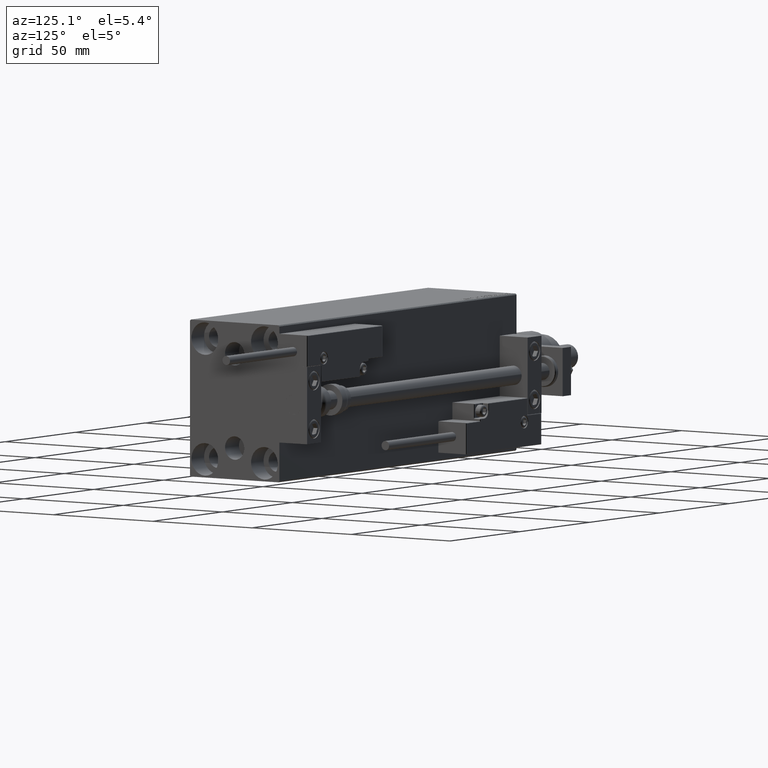
[diagram: clean part render]
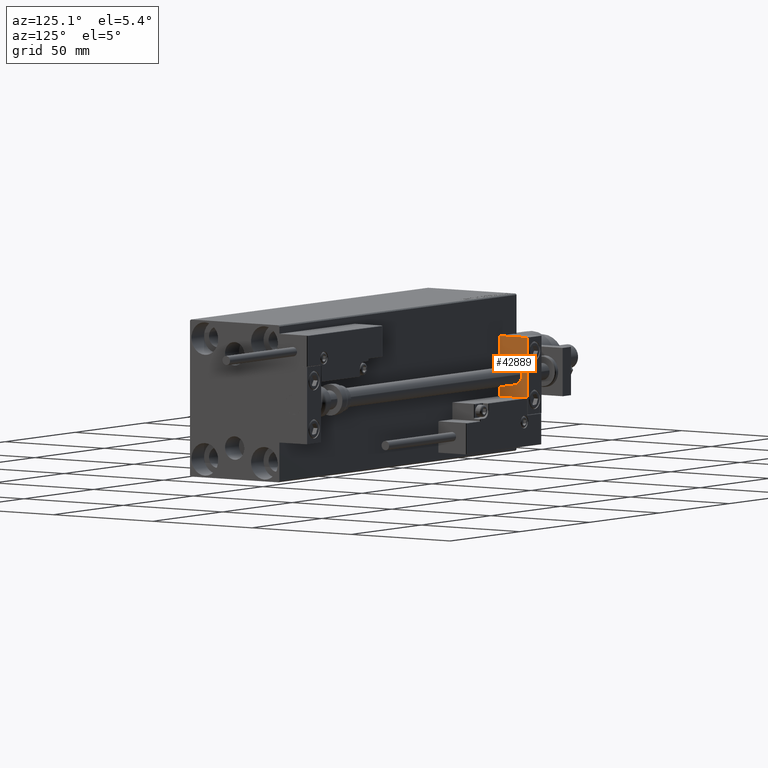
[diagram: same view with one face highlighted and labeled with its STEP entity id]
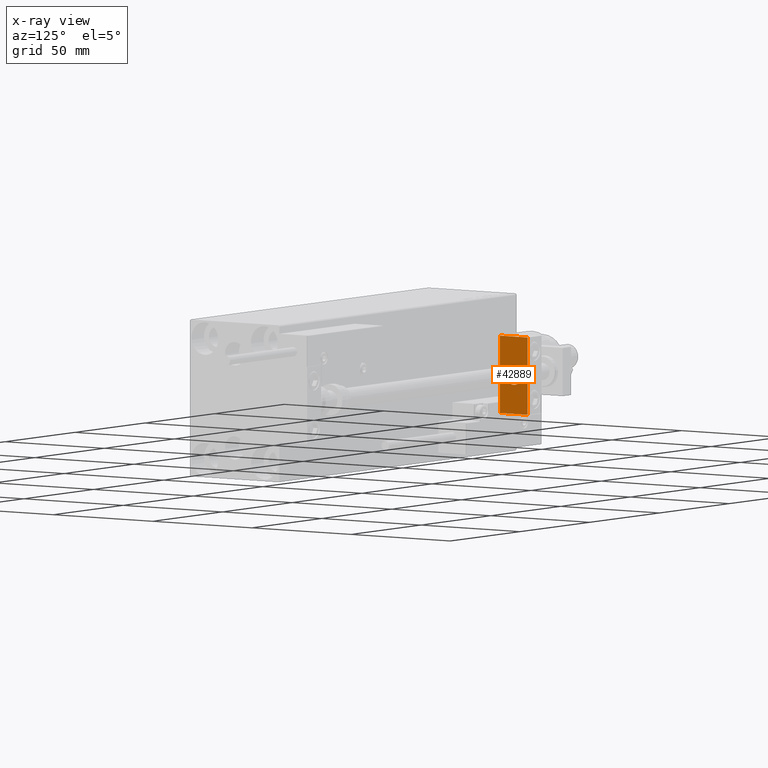
[diagram: x-ray of the same camera — body ghosted, the highlighted face saturated]
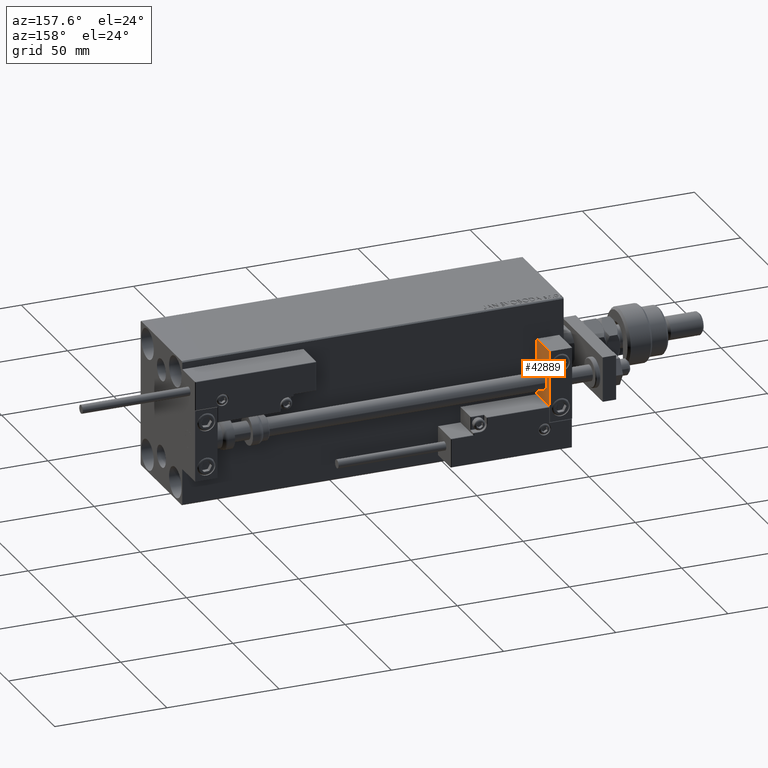
[diagram: same view with one face highlighted and labeled with its STEP entity id]
A machine part, auxiliary view. The second image highlights one B-rep face of the part: STEP entity #42889.
The next image is the same camera in x-ray: the body ghosted, the highlighted face saturated — about 0% of this face is hidden behind the body in this view.
A second angle (auxiliary view) of the same face is appended — the face is thin or edge-on in the first view.
In plain terms, the highlighted planar face has unit normal (1, 0, -0).
Its self-contained STEP definition (entity closure, byte-faithful):
#1687 = CARTESIAN_POINT ( 'NONE',  ( 0.000000000000000000, 0.000000000000000000, 4.000000000000000000 ) ) ;
#2921 = AXIS2_PLACEMENT_3D ( 'NONE', #19077, #26605, #14787 ) ;
#3023 = DIRECTION ( 'NONE',  ( -1.000000000000000000, -0.000000000000000000, -0.000000000000000000 ) ) ;
#3966 = EDGE_CURVE ( 'NONE', #49281, #51286, #26171, .T. ) ;
#4592 = VECTOR ( 'NONE', #13004, 1000.000000000000000 ) ;
#4768 = DIRECTION ( 'NONE',  ( -0.000000000000000000, 0.000000000000000000, 1.000000000000000000 ) ) ;
#5052 = VECTOR ( 'NONE', #26118, 1000.000000000000000 ) ;
#8233 = VERTEX_POINT ( 'NONE', #19262 ) ;
#9116 = EDGE_CURVE ( 'NONE', #42623, #46491, #33810, .T. ) ;
#11848 = EDGE_LOOP ( 'NONE', ( #45638, #43002, #26961, #44014 ) ) ;
#11877 = DIRECTION ( 'NONE',  ( 0.000000000000000000, 0.000000000000000000, 1.000000000000000000 ) ) ;
#12566 = PLANE ( 'NONE',  #52464 ) ;
#13004 = DIRECTION ( 'NONE',  ( 0.000000000000000000, 0.000000000000000000, -1.000000000000000000 ) ) ;
#14787 = DIRECTION ( 'NONE',  ( 0.000000000000000000, 0.000000000000000000, 1.000000000000000000 ) ) ;
#16134 = VECTOR ( 'NONE', #20956, 1000.000000000000000 ) ;
#16297 = EDGE_CURVE ( 'NONE', #42621, #42623, #30558, .T. ) ;
#17477 = CIRCLE ( 'NONE', #2921, 4.000000000000000000 ) ;
#19077 = CARTESIAN_POINT ( 'NONE',  ( 0.000000000000000000, 0.000000000000000000, 0.000000000000000000 ) ) ;
#19262 = CARTESIAN_POINT ( 'NONE',  ( 0.000000000000000000, -7.000000000000000000, 15.99999999999999289 ) ) ;
#19307 = AXIS2_PLACEMENT_3D ( 'NONE', #39730, #3023, #11877 ) ;
#20765 = ORIENTED_EDGE ( 'NONE', *, *, #3966, .F. ) ;
#20956 = DIRECTION ( 'NONE',  ( 0.000000000000000000, -1.000000000000000000, 0.000000000000000000 ) ) ;
#22247 = VECTOR ( 'NONE', #22503, 1000.000000000000000 ) ;
#22503 = DIRECTION ( 'NONE',  ( 0.000000000000000000, 0.000000000000000000, -1.000000000000000000 ) ) ;
#23042 = CARTESIAN_POINT ( 'NONE',  ( 0.000000000000000000, 7.000000000000000000, -16.00000000000000711 ) ) ;
#25152 = FACE_OUTER_BOUND ( 'NONE', #11848, .T. ) ;
#26118 = DIRECTION ( 'NONE',  ( 0.000000000000000000, -1.000000000000000000, 0.000000000000000000 ) ) ;
#26120 = EDGE_LOOP ( 'NONE', ( #20765, #40167 ) ) ;
#26171 = CIRCLE ( 'NONE', #19307, 4.000000000000000000 ) ;
#26605 = DIRECTION ( 'NONE',  ( -1.000000000000000000, -0.000000000000000000, -0.000000000000000000 ) ) ;
#26961 = ORIENTED_EDGE ( 'NONE', *, *, #16297, .T. ) ;
#28913 = CARTESIAN_POINT ( 'NONE',  ( 0.000000000000000000, 0.000000000000000000, 0.000000000000000000 ) ) ;
#30132 = LINE ( 'NONE', #46436, #5052 ) ;
#30335 = EDGE_CURVE ( 'NONE', #42621, #8233, #30132, .T. ) ;
#30558 = LINE ( 'NONE', #46870, #22247 ) ;
#33810 = LINE ( 'NONE', #50133, #16134 ) ;
#37310 = CARTESIAN_POINT ( 'NONE',  ( 0.000000000000000000, 4.898587196589412829E-16, -4.000000000000000000 ) ) ;
#39730 = CARTESIAN_POINT ( 'NONE',  ( 0.000000000000000000, 0.000000000000000000, 0.000000000000000000 ) ) ;
#40167 = ORIENTED_EDGE ( 'NONE', *, *, #41444, .F. ) ;
#40553 = EDGE_CURVE ( 'NONE', #8233, #46491, #52714, .T. ) ;
#41444 = EDGE_CURVE ( 'NONE', #51286, #49281, #17477, .T. ) ;
#42600 = CARTESIAN_POINT ( 'NONE',  ( 0.000000000000000000, 7.000000000000000000, 15.99999999999999289 ) ) ;
#42621 = VERTEX_POINT ( 'NONE', #42600 ) ;
#42623 = VERTEX_POINT ( 'NONE', #23042 ) ;
#42666 = CARTESIAN_POINT ( 'NONE',  ( 0.000000000000000000, -7.000000000000000000, -16.00000000000000711 ) ) ;
#42889 = ADVANCED_FACE ( 'NONE', ( #45747, #25152 ), #12566, .T. ) ;
#43002 = ORIENTED_EDGE ( 'NONE', *, *, #30335, .F. ) ;
#44014 = ORIENTED_EDGE ( 'NONE', *, *, #9116, .T. ) ;
#45638 = ORIENTED_EDGE ( 'NONE', *, *, #40553, .F. ) ;
#45747 = FACE_BOUND ( 'NONE', #26120, .T. ) ;
#46436 = CARTESIAN_POINT ( 'NONE',  ( 0.000000000000000000, 7.000000000000000000, 15.99999999999999289 ) ) ;
#46491 = VERTEX_POINT ( 'NONE', #42666 ) ;
#46870 = CARTESIAN_POINT ( 'NONE',  ( 0.000000000000000000, 7.000000000000000000, 15.99999999999999289 ) ) ;
#48440 = CARTESIAN_POINT ( 'NONE',  ( 0.000000000000000000, -7.000000000000000000, 15.99999999999999289 ) ) ;
#49281 = VERTEX_POINT ( 'NONE', #1687 ) ;
#50133 = CARTESIAN_POINT ( 'NONE',  ( 0.000000000000000000, 7.000000000000000000, -16.00000000000000711 ) ) ;
#50287 = DIRECTION ( 'NONE',  ( -1.000000000000000000, 0.000000000000000000, -0.000000000000000000 ) ) ;
#51286 = VERTEX_POINT ( 'NONE', #37310 ) ;
#52464 = AXIS2_PLACEMENT_3D ( 'NONE', #28913, #50287, #4768 ) ;
#52714 = LINE ( 'NONE', #48440, #4592 ) ;